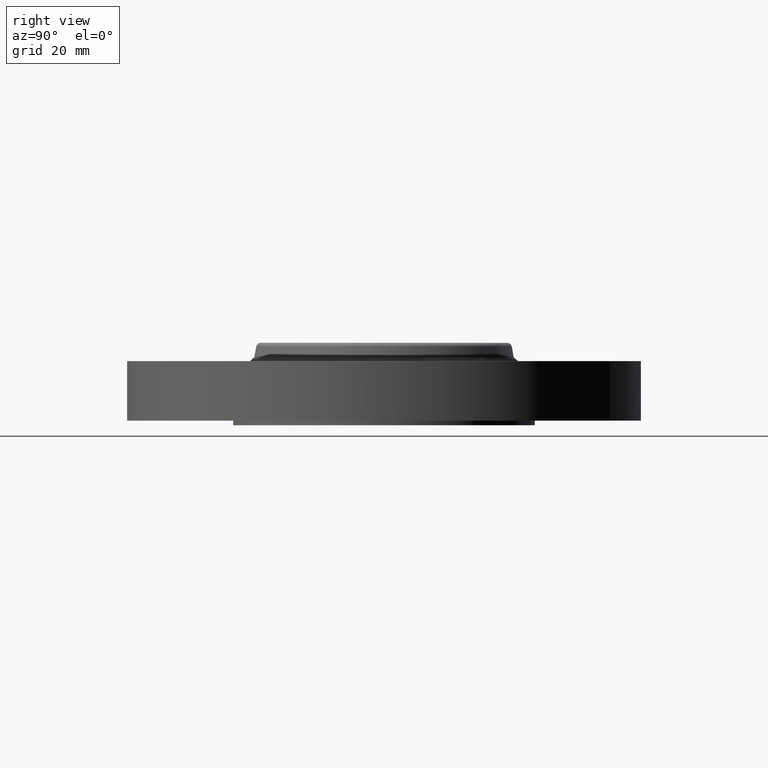
[diagram: clean part render]
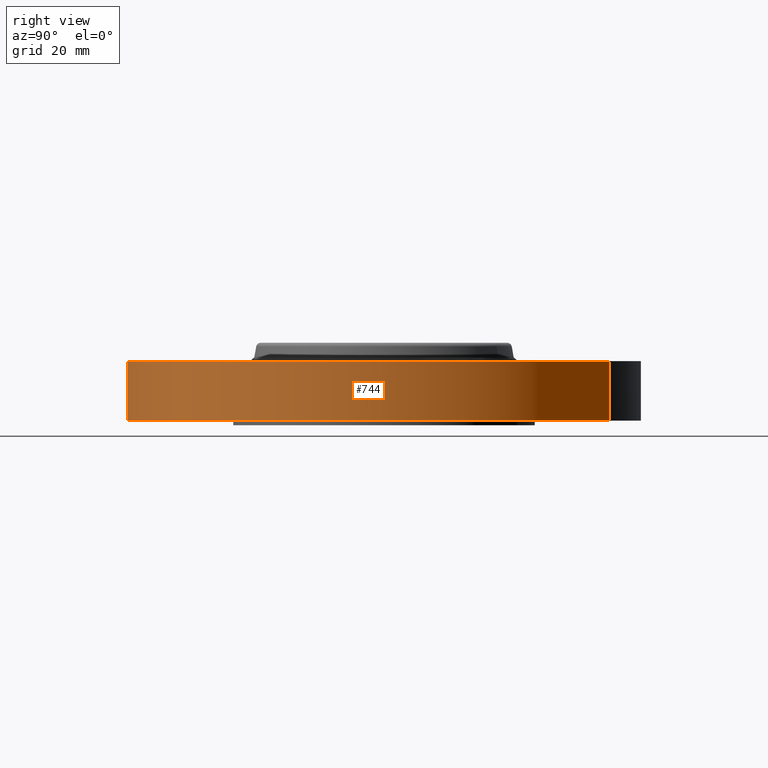
[diagram: same view with one face highlighted and labeled with its STEP entity id]
A machine part, right view. The second image highlights one B-rep face of the part: STEP entity #744.
In plain terms, the highlighted cylindrical surface (partial cylindrical patch) has radius 88.9 mm, axis along (0, 0, -1).
Its self-contained STEP definition (entity closure, byte-faithful):
#500=AXIS2_PLACEMENT_3D('Circle Axis2P3D',#498,#499,$) ;
#717=AXIS2_PLACEMENT_3D('Cylinder Axis2P3D',#714,#715,#716) ;
#728=AXIS2_PLACEMENT_3D('Circle Axis2P3D',#726,#727,$) ;
#493=CARTESIAN_POINT('Vertex',(-1.67798938512,-3.07153896663,4.89547160465E-016)) ;
#495=CARTESIAN_POINT('Vertex',(1.67798938512,3.07153896663,4.89547160465E-016)) ;
#498=CARTESIAN_POINT('Axis2P3D Location',(0.,0.,0.)) ;
#714=CARTESIAN_POINT('Axis2P3D Location',(0.,0.,0.498750000002)) ;
#719=CARTESIAN_POINT('Line Origine',(1.67798938512,3.07153896663,0.405000000002)) ;
#723=CARTESIAN_POINT('Vertex',(1.67798938512,3.07153896663,0.810000000003)) ;
#726=CARTESIAN_POINT('Axis2P3D Location',(0.,0.,0.810000000003)) ;
#730=CARTESIAN_POINT('Vertex',(-1.67798938512,-3.07153896663,0.810000000003)) ;
#733=CARTESIAN_POINT('Line Origine',(-1.67798938512,-3.07153896663,0.405000000002)) ;
#499=DIRECTION('Axis2P3D Direction',(0.,0.,-0.0393700787402)) ;
#715=DIRECTION('Axis2P3D Direction',(0.,0.,-0.0393700787402)) ;
#716=DIRECTION('Axis2P3D XDirection',(-0.0188750212049,-0.0345504945626,0.)) ;
#720=DIRECTION('Vector Direction',(0.,0.,-0.0393700787402)) ;
#727=DIRECTION('Axis2P3D Direction',(0.,0.,-0.0393700787402)) ;
#734=DIRECTION('Vector Direction',(0.,0.,-0.0393700787402)) ;
#721=VECTOR('Line Direction',#720,0.0393700787402) ;
#735=VECTOR('Line Direction',#734,0.0393700787402) ;
#739=ORIENTED_EDGE('',*,*,#502,.F.) ;
#740=ORIENTED_EDGE('',*,*,#725,.T.) ;
#741=ORIENTED_EDGE('',*,*,#732,.T.) ;
#742=ORIENTED_EDGE('',*,*,#737,.F.) ;
#744=ADVANCED_FACE('PartBody',(#743),#718,.T.) ;
#501=CIRCLE('generated circle',#500,3.50000000001) ;
#729=CIRCLE('generated circle',#728,3.50000000001) ;
#718=CYLINDRICAL_SURFACE('generated cylinder',#717,3.50000000001) ;
#502=EDGE_CURVE('',#496,#494,#501,.T.) ;
#725=EDGE_CURVE('',#496,#724,#722,.F.) ;
#732=EDGE_CURVE('',#724,#731,#729,.T.) ;
#737=EDGE_CURVE('',#494,#731,#736,.F.) ;
#738=EDGE_LOOP('',(#739,#740,#741,#742)) ;
#743=FACE_OUTER_BOUND('',#738,.T.) ;
#722=LINE('Line',#719,#721) ;
#736=LINE('Line',#733,#735) ;
#494=VERTEX_POINT('',#493) ;
#496=VERTEX_POINT('',#495) ;
#724=VERTEX_POINT('',#723) ;
#731=VERTEX_POINT('',#730) ;